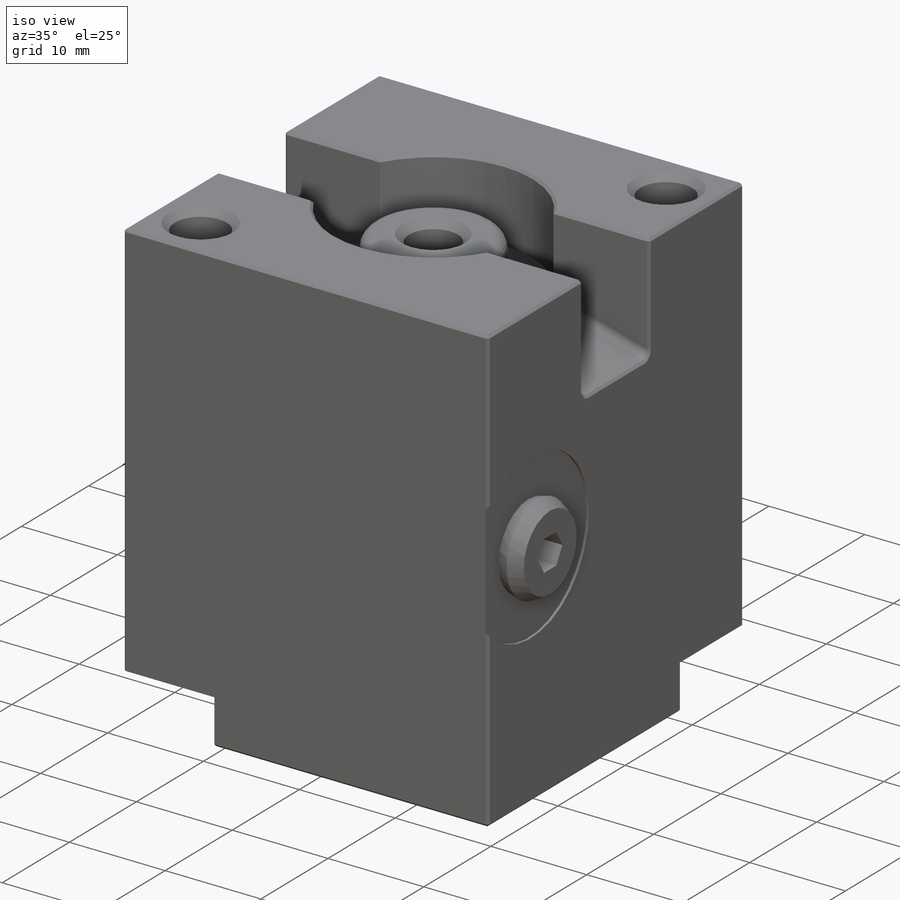
[diagram: iso view]
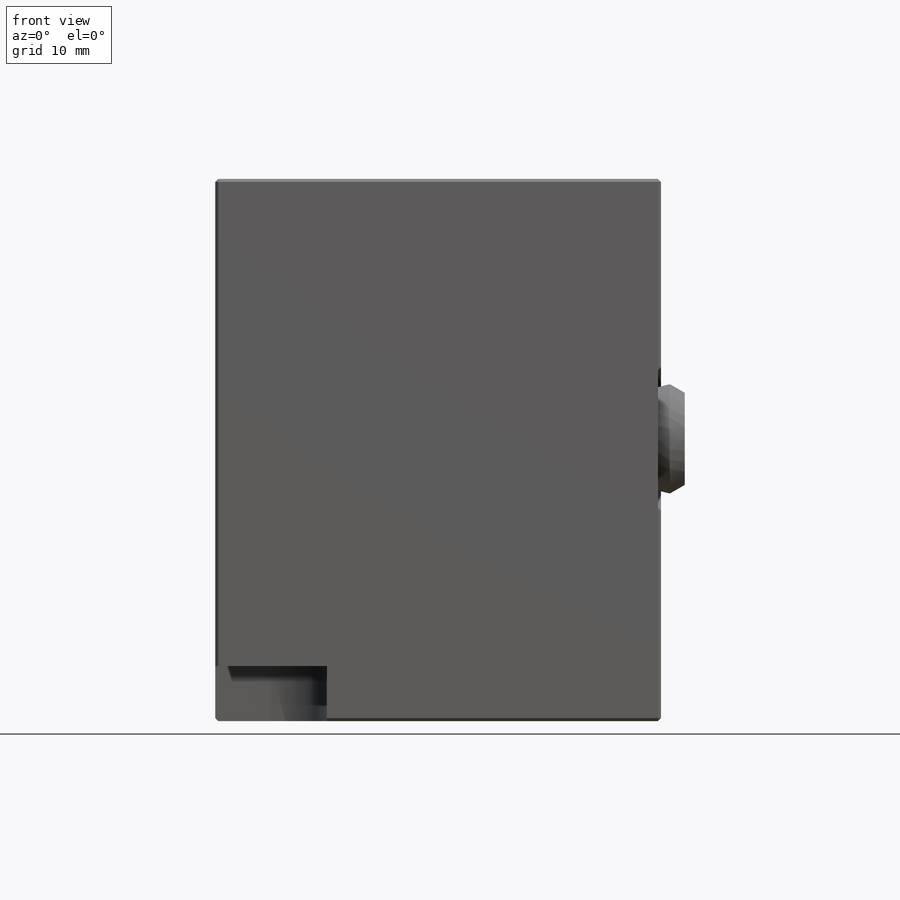
[diagram: front view]
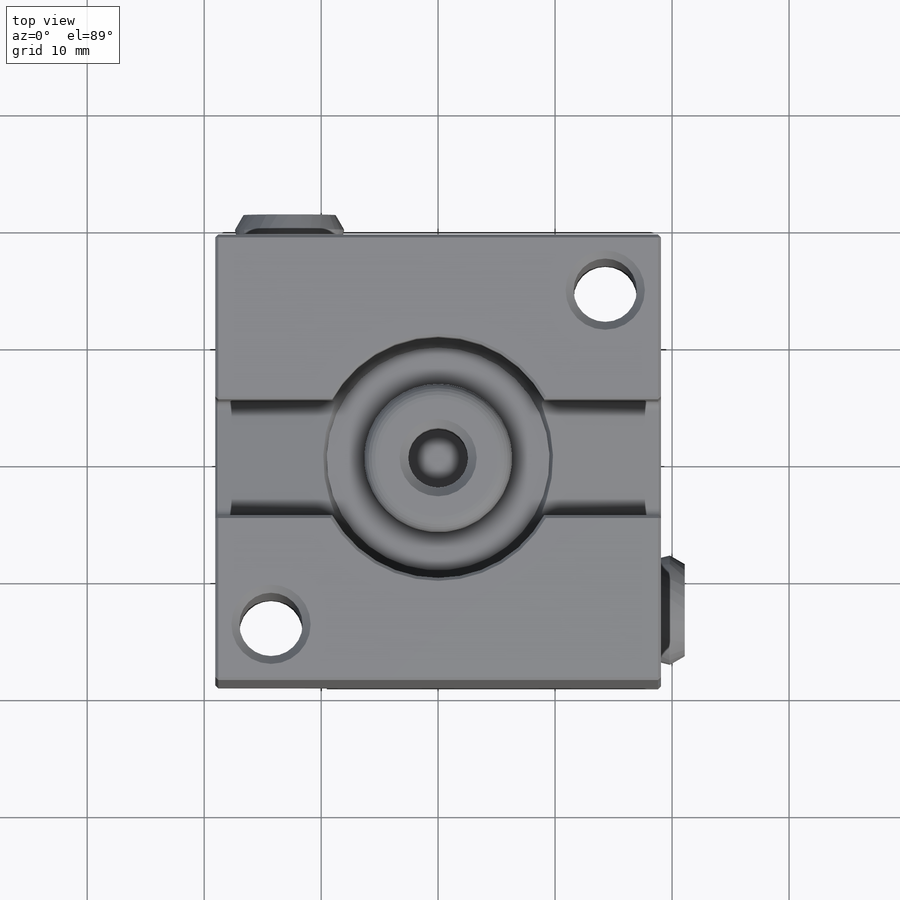
[diagram: top view]
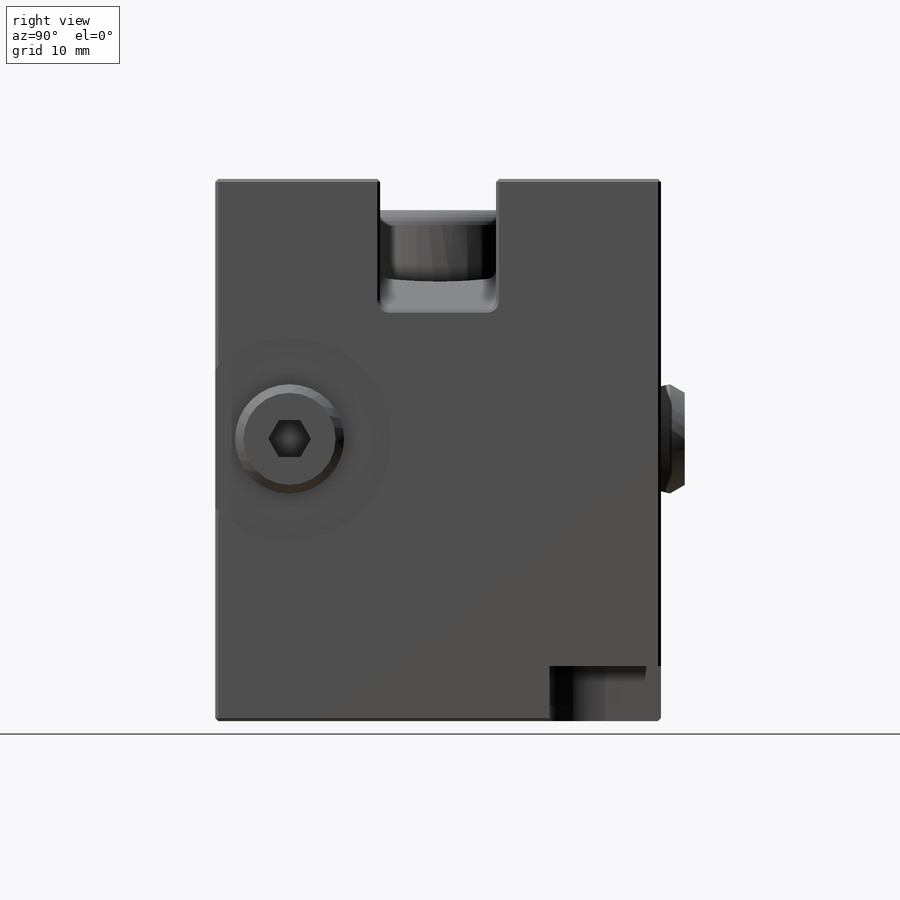
[diagram: right view]
SOLIDWORKS PART (.sldprt)
format: sldprt  version: not decoded by parser v0  size: 504,832 bytes
history: native  units: mm
features: sketch x11, plane x3, mirror x3, cut_extrude x3, cut_revolve x2, hole x2, thread x2, revolve x2, material x1, extrude x1, fillet x1, chamfer x1 (+11 scaffold rows collapsed)
feature tree (43):
  scaffold x11  (default folders/planes/origin — collapsed)
  material  "Material <not specified>"
  sketch  "Sketch1"  dims[D1=38.1mm D2=38.1mm]
  extrude  "BLOCK_STOCK"  Depth=46.355mm
  sketch  "Sketch2"  dims[c1.D1=~1.18312mm c2.D1=45.0deg c2.D2=~3.889677mm c3.D2=25.0deg c3.D3=7.8232mm c3.D4=19.558mm c3.D5=17.4498mm c3.D6=19.05mm c3.D7=11.303mm c3.D8=~0.742995mm c4.D8=45.0deg c4.D9=0.508mm c4.D10=21.2598mm c4.D1=27.3812mm c4.D2=~0.800819mm c5.D2=45.0deg c5.D3=0.508mm c5.D4=21.1582mm c5.D5=20.6502mm c5.D6=19.05mm c5.D7=~0.577104mm c6.D7=45.0deg c6.D8=0.8001mm c7.D8=25.0deg c7.D9=9.4234mm c7.D10=12.0904mm]
  cut_revolve  "ID_FEATURES"  Angle=360deg
  plane  "Plane1"
  hole  "MOUNTING_HOLE"  Diameter=5.4102mm Depth=46.355mm
  sketch  "Sketch17"  dims[c1.D1=12.7mm c1.D2=12.7mm c2.D1=14.2875mm c2.D2=14.2875mm]
  sketch  "Sketch18"  dims[Diameter=5.4102mm Depth=46.355mm C-Sink Angle=90.0deg C-Sink Diameter=6.7818mm]
  thread  "Cosmetic Thread2"  Diameter=12.7mm  [1 undecoded]
  mirror  "Mirror3"
  sketch  "Sketch15"  dims[c1.D1=11.2522mm c1.D2=17.4625mm c2.D2=~14.644658deg c3.D2=19.8501mm c3.D3=17.4625mm c4.D3=~14.644658deg c5.D3=17.4625mm c6.D3=15.0deg c6.D4=~4.47261mm]
  cut_extrude  "Cut-Extrude1"  Depth=9.906mm
  fillet  "Fillet1"  Radius=0.762mm
  mirror  "Mirror4"
  sketch  "Sketch19"  dims[c1.D1=9.525mm c1.D2=9.525mm c2.D1=9.525mm c2.D2=9.525mm c2.D3=25.4mm c2.D4=25.4mm c3.D3=28.575mm c3.D4=28.575mm]
  cut_extrude  "Cut-Extrude2"  Depth=4.699mm
  hole  "Hole2"  Diameter=17.3228mm Depth=0.254mm
  sketch  "Sketch23"  dims[D1=6.35mm D2=22.225mm]
  sketch  "Sketch22"  dims[Diameter=17.3228mm Depth=0.254mm]
  cut_revolve  "Axis2"  [1 undecoded]
  plane  "Plane2"
  sketch  "Sketch26"  dims[c1.D6=0.127mm c1.D1=8.8392mm c1.D2=~1.573873mm c2.D2=30.0deg c2.D3=9.3472mm c2.D4=2.286mm c2.D5=1.016mm]
  revolve  "SAE_PLUG"  Angle=360deg
  sketch  "Sketch27"  dims[c1.D1=0.9144mm c1.D2=3.175mm c1.D3=1.5875mm c1.D4=~2.076139mm c2.D4=120.0deg c2.D5=~2.224205mm c3.D5=120.0deg c3.D6=~1.099023mm c4.D6=120.0deg c4.D7=~1.30153mm c5.D7=120.0deg c5.D8=~0.916544mm c6.D8=120.0deg c7.D8=~2.224205mm c8.D8=120.0deg c9.D8=~1.309805mm c9.D1=0.9144mm c9.D2=1.8288mm c9.D3=3.175mm c9.D4=1.5875mm c9.D5=1.5875mm c10.D5=120.0deg c10.D6=~1.579297mm c11.D6=120.0deg c11.D7=1.8288mm c12.D7=120.0deg]
  cut_extrude  "Cut-Extrude3"  Depth=6.35mm
  plane  "Plane3"
  mirror  "Mirror5"
  chamfer  "Chamfer1"  Distance=0.254mm Angle=45deg
  sketch  "Sketch30"  dims[c1.D8=1.27mm c1.D1=11.303mm c1.D2=2.667mm c1.D3=3.175mm c1.D4=6.2484mm c1.D5=~5.396967mm c2.D1=11.303mm c2.D5=3.4036mm c2.D6=12.6492mm c2.D7=19.05mm c3.D5=3.4036mm c3.D9=6.604mm c3.D10=~0.739586mm c4.D10=45.0deg c4.D11=8.9154mm c4.D3=5.1054mm c4.D4=8.0264mm c5.D4=45.0deg c5.D5=12.0904mm]
  revolve  "PLUNGER"  [1 undecoded]
  thread  "Cosmetic Thread1"  Diameter=6.35mm  [1 undecoded]
decode coverage: 23 of 28 modeling features carry decoded parameters
note: ~ marks probable driven/reference dimensions
note: 4 parameter values undecoded
note: suppression state not decoded; provenance and decode notes live in map.json
